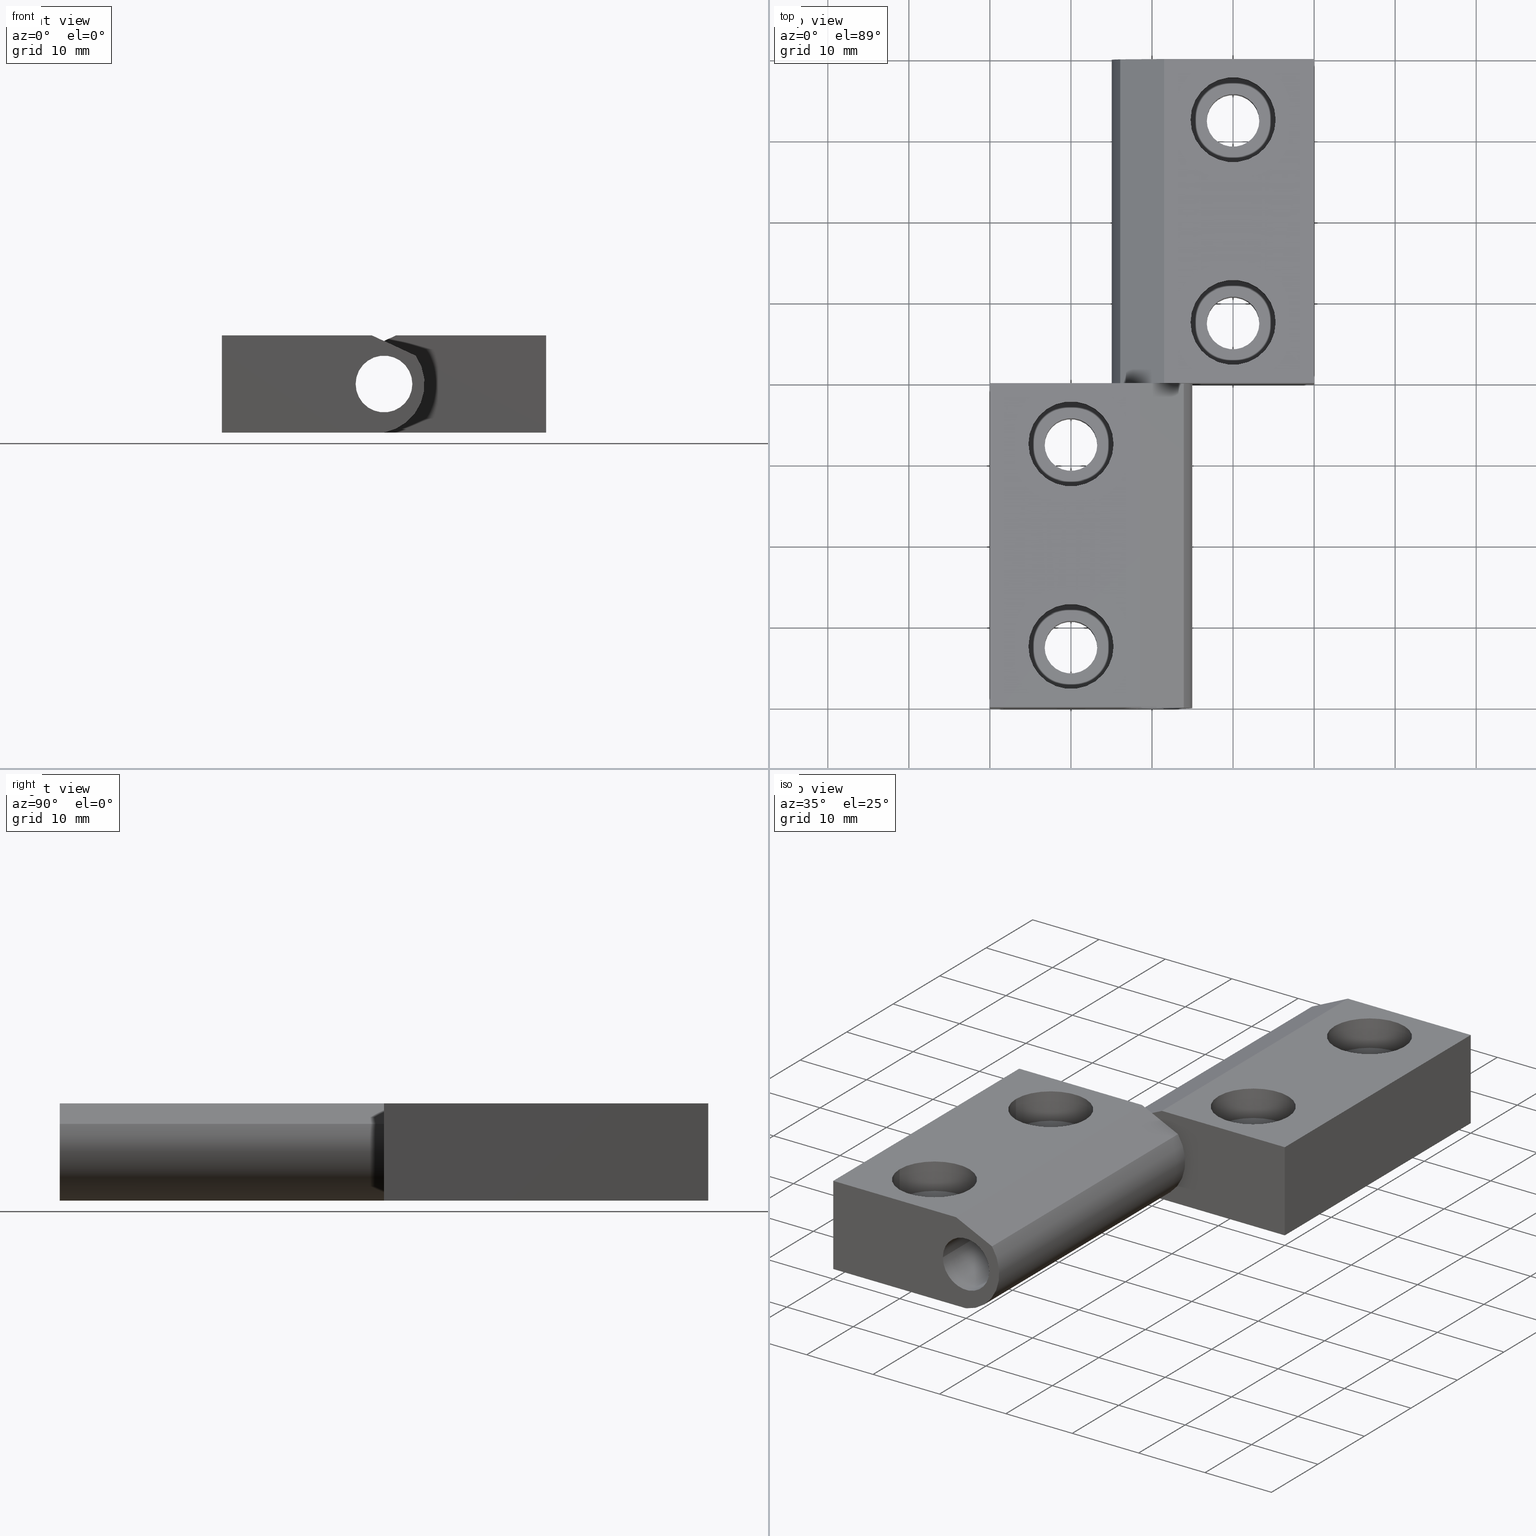
[diagram: canonical four-view strip — front | top / right | iso, engineering-drawing reading convention]
A machine part, canonical four-view strip (front | top / right | iso — engineering-drawing reading convention). The complete STEP part file that produces these views, byte-faithful:
ISO-10303-21;
HEADER;
/****************************************************************
 * Generated by software with PDE/Lib inside                    *
 * PDElib Version v4.4, created Mon 02/23/2004                  *
 * International Technegroup Inc. (www.iti-oh.com)              *
 ****************************************************************/
FILE_DESCRIPTION(('STEP AP203'),'2;1');
FILE_NAME('15.160.00.stp','2011-03-21T15:46:27',(''),(''),'2009.3.110','THINKDESIGN','');
FILE_SCHEMA(('CONFIG_CONTROL_DESIGN'));
ENDSEC;
DATA;
#2=CARTESIAN_POINT('',(19.999959999920065,80.0,-5.999987999976378));
#3=DIRECTION('',(0.0,0.0,1.0));
#4=DIRECTION('',(-1.0,0.0,0.0));
#5=AXIS2_PLACEMENT_3D('',#2,#3,#4);
#6=PLANE('',#5);
#7=CARTESIAN_POINT('',(19.999959999920065,80.0,-5.999987999976378));
#8=VERTEX_POINT('',#7);
#9=CARTESIAN_POINT('',(19.999959999920065,40.0,-5.999987999976381));
#10=VERTEX_POINT('',#9);
#11=CARTESIAN_POINT('',(19.999959999920065,80.0,-5.999987999976378));
#12=DIRECTION('',(0.0,-1.0,0.0));
#13=VECTOR('',#12,40.0);
#14=LINE('',#11,#13);
#15=EDGE_CURVE('',#8,#10,#14,.T.);
#16=ORIENTED_EDGE('',*,*,#15,.T.);
#17=CARTESIAN_POINT('',(0.000002618212875,40.0,-5.999987999976381));
#18=VERTEX_POINT('',#17);
#19=CARTESIAN_POINT('',(19.999959999920065,40.0,-5.999987999976381));
#20=DIRECTION('',(-1.0,0.0,0.0));
#21=VECTOR('',#20,19.999957381707191);
#22=LINE('',#19,#21);
#23=EDGE_CURVE('',#10,#18,#22,.T.);
#24=ORIENTED_EDGE('',*,*,#23,.T.);
#25=CARTESIAN_POINT('',(0.000002618212875,80.0,-5.999987999976378));
#26=VERTEX_POINT('',#25);
#27=CARTESIAN_POINT('',(0.000002618212875,80.0,-5.999987999976378));
#28=DIRECTION('',(0.0,-1.0,0.0));
#29=VECTOR('',#28,40.0);
#30=LINE('',#27,#29);
#31=EDGE_CURVE('',#26,#18,#30,.T.);
#32=ORIENTED_EDGE('',*,*,#31,.F.);
#33=CARTESIAN_POINT('',(19.999959999920065,80.0,-5.999987999976378));
#34=DIRECTION('',(-1.0,0.0,0.0));
#35=VECTOR('',#34,19.999957381707191);
#36=LINE('',#33,#35);
#37=EDGE_CURVE('',#8,#26,#36,.T.);
#38=ORIENTED_EDGE('',*,*,#37,.F.);
#39=EDGE_LOOP('',(#16,#24,#32,#38));
#40=FACE_OUTER_BOUND('',#39,.T.);
#41=CARTESIAN_POINT('',(13.249979999960033,72.500015000030089,-5.999987999976379));
#42=VERTEX_POINT('',#41);
#43=CARTESIAN_POINT('',(6.749979999960033,72.500015000030089,-5.999987999976379));
#44=VERTEX_POINT('',#43);
#45=CARTESIAN_POINT('',(9.999979999960033,72.500015000030089,-5.999987999976379));
#46=DIRECTION('',(0.0,0.0,1.0));
#47=DIRECTION('',(1.0,0.0,0.0));
#48=AXIS2_PLACEMENT_3D('',#45,#46,#47);
#49=CIRCLE('',#48,3.250000000000000);
#50=EDGE_CURVE('',#42,#44,#49,.T.);
#51=ORIENTED_EDGE('',*,*,#50,.T.);
#52=CARTESIAN_POINT('',(9.999979999960033,72.500015000030089,-5.999987999976379));
#53=DIRECTION('',(0.0,0.0,1.0));
#54=DIRECTION('',(1.0,0.0,0.0));
#55=AXIS2_PLACEMENT_3D('',#52,#53,#54);
#56=CIRCLE('',#55,3.250000000000000);
#57=EDGE_CURVE('',#44,#42,#56,.T.);
#58=ORIENTED_EDGE('',*,*,#57,.T.);
#59=EDGE_LOOP('',(#51,#58));
#60=FACE_BOUND('',#59,.T.);
#61=CARTESIAN_POINT('',(13.249979999960033,47.500065000130235,-5.999987999976381));
#62=VERTEX_POINT('',#61);
#63=CARTESIAN_POINT('',(6.749979999960033,47.500065000130235,-5.999987999976381));
#64=VERTEX_POINT('',#63);
#65=CARTESIAN_POINT('',(9.999979999960033,47.500065000130235,-5.999987999976381));
#66=DIRECTION('',(0.0,0.0,1.0));
#67=DIRECTION('',(1.0,0.0,0.0));
#68=AXIS2_PLACEMENT_3D('',#65,#66,#67);
#69=CIRCLE('',#68,3.250000000000000);
#70=EDGE_CURVE('',#62,#64,#69,.T.);
#71=ORIENTED_EDGE('',*,*,#70,.T.);
#72=CARTESIAN_POINT('',(9.999979999960033,47.500065000130235,-5.999987999976381));
#73=DIRECTION('',(0.0,0.0,1.0));
#74=DIRECTION('',(1.0,0.0,0.0));
#75=AXIS2_PLACEMENT_3D('',#72,#73,#74);
#76=CIRCLE('',#75,3.250000000000000);
#77=EDGE_CURVE('',#64,#62,#76,.T.);
#78=ORIENTED_EDGE('',*,*,#77,.T.);
#79=EDGE_LOOP('',(#71,#78));
#80=FACE_BOUND('',#79,.T.);
#81=ADVANCED_FACE('',(#40,#60,#80),#6,.F.);
#82=CARTESIAN_POINT('',(1.099998098277865,80.0,0.000000427091441));
#83=DIRECTION('',(0.0,1.0,6.123234E-017));
#84=DIRECTION('',(-0.180327488483690,6.022854E-017,-0.983606627111248));
#85=AXIS2_PLACEMENT_3D('',#82,#83,#84);
#86=CYLINDRICAL_SURFACE('',#85,6.099987801718248);
#87=ORIENTED_EDGE('',*,*,#31,.T.);
#88=CARTESIAN_POINT('',(-3.912713944059760,40.0,3.475999443448930));
#89=VERTEX_POINT('',#88);
#90=CARTESIAN_POINT('',(1.099998098277865,40.0,0.000000427091438));
#91=DIRECTION('',(0.0,1.0,6.123234E-017));
#92=DIRECTION('',(-0.180327488483690,6.022854E-017,-0.983606627111248));
#93=AXIS2_PLACEMENT_3D('',#90,#91,#92);
#94=CIRCLE('',#93,6.099987801718248);
#95=EDGE_CURVE('',#18,#89,#94,.T.);
#96=ORIENTED_EDGE('',*,*,#95,.T.);
#97=CARTESIAN_POINT('',(-3.912713944059760,80.0,3.475999443448932));
#98=VERTEX_POINT('',#97);
#99=CARTESIAN_POINT('',(-3.912713944059760,80.0,3.475999443448932));
#100=DIRECTION('',(0.0,-1.0,0.0));
#101=VECTOR('',#100,40.0);
#102=LINE('',#99,#101);
#103=EDGE_CURVE('',#98,#89,#102,.T.);
#104=ORIENTED_EDGE('',*,*,#103,.F.);
#105=CARTESIAN_POINT('',(1.099998098277865,80.0,0.000000427091441));
#106=DIRECTION('',(0.0,1.0,6.123234E-017));
#107=DIRECTION('',(-0.180327488483690,6.022854E-017,-0.983606627111248));
#108=AXIS2_PLACEMENT_3D('',#105,#106,#107);
#109=CIRCLE('',#108,6.099987801718248);
#110=EDGE_CURVE('',#26,#98,#109,.T.);
#111=ORIENTED_EDGE('',*,*,#110,.F.);
#112=EDGE_LOOP('',(#87,#96,#104,#111));
#113=FACE_OUTER_BOUND('',#112,.T.);
#114=ADVANCED_FACE('',(#113),#86,.T.);
#115=CARTESIAN_POINT('',(-3.912713944059760,80.0,3.475999443448932));
#116=DIRECTION('',(0.422618260631533,5.549535E-017,-0.906307787553863));
#117=DIRECTION('',(0.906307787553863,-2.587791E-017,0.422618260631533));
#118=AXIS2_PLACEMENT_3D('',#115,#116,#117);
#119=PLANE('',#118);
#120=ORIENTED_EDGE('',*,*,#103,.T.);
#121=CARTESIAN_POINT('',(1.499996999993982,40.0,5.999987999975931));
#122=VERTEX_POINT('',#121);
#123=CARTESIAN_POINT('',(-3.912713944059760,40.0,3.475999443448930));
#124=DIRECTION('',(0.906307787553863,0.0,0.422618260631533));
#125=VECTOR('',#124,5.972265733987262);
#126=LINE('',#123,#125);
#127=EDGE_CURVE('',#89,#122,#126,.T.);
#128=ORIENTED_EDGE('',*,*,#127,.T.);
#129=CARTESIAN_POINT('',(1.499996999993982,80.0,5.999987999975934));
#130=VERTEX_POINT('',#129);
#131=CARTESIAN_POINT('',(1.499996999993982,80.0,5.999987999975934));
#132=DIRECTION('',(0.0,-1.0,0.0));
#133=VECTOR('',#132,40.0);
#134=LINE('',#131,#133);
#135=EDGE_CURVE('',#130,#122,#134,.T.);
#136=ORIENTED_EDGE('',*,*,#135,.F.);
#137=CARTESIAN_POINT('',(-3.912713944059760,80.0,3.475999443448932));
#138=DIRECTION('',(0.906307787553863,0.0,0.422618260631533));
#139=VECTOR('',#138,5.972265733987262);
#140=LINE('',#137,#139);
#141=EDGE_CURVE('',#98,#130,#140,.T.);
#142=ORIENTED_EDGE('',*,*,#141,.F.);
#143=EDGE_LOOP('',(#120,#128,#136,#142));
#144=FACE_OUTER_BOUND('',#143,.T.);
#145=ADVANCED_FACE('',(#144),#119,.F.);
#146=CARTESIAN_POINT('',(1.499996999993982,80.0,5.999987999975934));
#147=DIRECTION('',(0.0,0.0,-1.0));
#148=DIRECTION('',(1.0,0.0,0.0));
#149=AXIS2_PLACEMENT_3D('',#146,#147,#148);
#150=PLANE('',#149);
#151=ORIENTED_EDGE('',*,*,#135,.T.);
#152=CARTESIAN_POINT('',(19.999959999920065,40.0,5.999987999975931));
#153=VERTEX_POINT('',#152);
#154=CARTESIAN_POINT('',(1.499996999993982,40.0,5.999987999975931));
#155=DIRECTION('',(1.0,0.0,0.0));
#156=VECTOR('',#155,18.499962999926083);
#157=LINE('',#154,#156);
#158=EDGE_CURVE('',#122,#153,#157,.T.);
#159=ORIENTED_EDGE('',*,*,#158,.T.);
#160=CARTESIAN_POINT('',(19.999959999920065,80.0,5.999987999975934));
#161=VERTEX_POINT('',#160);
#162=CARTESIAN_POINT('',(19.999959999920065,80.0,5.999987999975934));
#163=DIRECTION('',(0.0,-1.0,0.0));
#164=VECTOR('',#163,40.0);
#165=LINE('',#162,#164);
#166=EDGE_CURVE('',#161,#153,#165,.T.);
#167=ORIENTED_EDGE('',*,*,#166,.F.);
#168=CARTESIAN_POINT('',(1.499996999993982,80.0,5.999987999975934));
#169=DIRECTION('',(1.0,0.0,0.0));
#170=VECTOR('',#169,18.499962999926083);
#171=LINE('',#168,#170);
#172=EDGE_CURVE('',#130,#161,#171,.T.);
#173=ORIENTED_EDGE('',*,*,#172,.F.);
#174=EDGE_LOOP('',(#151,#159,#167,#173));
#175=FACE_OUTER_BOUND('',#174,.T.);
#176=CARTESIAN_POINT('',(4.749979999960033,72.500015000030089,5.999987999975933));
#177=VERTEX_POINT('',#176);
#178=CARTESIAN_POINT('',(15.249979999960033,72.500015000030089,5.999987999975933));
#179=VERTEX_POINT('',#178);
#180=CARTESIAN_POINT('',(9.999979999960033,72.500015000030089,5.999987999975933));
#181=DIRECTION('',(0.0,0.0,1.0));
#182=DIRECTION('',(1.0,0.0,0.0));
#183=AXIS2_PLACEMENT_3D('',#180,#181,#182);
#184=CIRCLE('',#183,5.250000000000000);
#185=EDGE_CURVE('',#177,#179,#184,.T.);
#186=ORIENTED_EDGE('',*,*,#185,.F.);
#187=CARTESIAN_POINT('',(9.999979999960033,72.500015000030089,5.999987999975933));
#188=DIRECTION('',(0.0,0.0,1.0));
#189=DIRECTION('',(1.0,0.0,0.0));
#190=AXIS2_PLACEMENT_3D('',#187,#188,#189);
#191=CIRCLE('',#190,5.250000000000000);
#192=EDGE_CURVE('',#179,#177,#191,.T.);
#193=ORIENTED_EDGE('',*,*,#192,.F.);
#194=EDGE_LOOP('',(#186,#193));
#195=FACE_BOUND('',#194,.T.);
#196=CARTESIAN_POINT('',(4.749979999960033,47.500065000130235,5.999987999975931));
#197=VERTEX_POINT('',#196);
#198=CARTESIAN_POINT('',(15.249979999960033,47.500065000130235,5.999987999975931));
#199=VERTEX_POINT('',#198);
#200=CARTESIAN_POINT('',(9.999979999960033,47.500065000130235,5.999987999975931));
#201=DIRECTION('',(0.0,0.0,1.0));
#202=DIRECTION('',(1.0,0.0,0.0));
#203=AXIS2_PLACEMENT_3D('',#200,#201,#202);
#204=CIRCLE('',#203,5.250000000000000);
#205=EDGE_CURVE('',#197,#199,#204,.T.);
#206=ORIENTED_EDGE('',*,*,#205,.F.);
#207=CARTESIAN_POINT('',(9.999979999960033,47.500065000130235,5.999987999975931));
#208=DIRECTION('',(0.0,0.0,1.0));
#209=DIRECTION('',(1.0,0.0,0.0));
#210=AXIS2_PLACEMENT_3D('',#207,#208,#209);
#211=CIRCLE('',#210,5.250000000000000);
#212=EDGE_CURVE('',#199,#197,#211,.T.);
#213=ORIENTED_EDGE('',*,*,#212,.F.);
#214=EDGE_LOOP('',(#206,#213));
#215=FACE_BOUND('',#214,.T.);
#216=ADVANCED_FACE('',(#175,#195,#215),#150,.F.);
#217=CARTESIAN_POINT('',(19.999959999920065,80.0,5.999987999975934));
#218=DIRECTION('',(-1.0,0.0,0.0));
#219=DIRECTION('',(0.0,0.0,-1.0));
#220=AXIS2_PLACEMENT_3D('',#217,#218,#219);
#221=PLANE('',#220);
#222=ORIENTED_EDGE('',*,*,#166,.T.);
#223=CARTESIAN_POINT('',(19.999959999920065,40.0,5.999987999975931));
#224=DIRECTION('',(0.0,0.0,-1.0));
#225=VECTOR('',#224,11.999975999952312);
#226=LINE('',#223,#225);
#227=EDGE_CURVE('',#153,#10,#226,.T.);
#228=ORIENTED_EDGE('',*,*,#227,.T.);
#229=ORIENTED_EDGE('',*,*,#15,.F.);
#230=CARTESIAN_POINT('',(19.999959999920065,80.0,5.999987999975934));
#231=DIRECTION('',(0.0,0.0,-1.0));
#232=VECTOR('',#231,11.999975999952312);
#233=LINE('',#230,#232);
#234=EDGE_CURVE('',#161,#8,#233,.T.);
#235=ORIENTED_EDGE('',*,*,#234,.F.);
#236=EDGE_LOOP('',(#222,#228,#229,#235));
#237=FACE_OUTER_BOUND('',#236,.T.);
#238=ADVANCED_FACE('',(#237),#221,.F.);
#239=CARTESIAN_POINT('',(-7.499989406390796,80.0,7.199990332646399));
#240=DIRECTION('',(0.0,1.0,0.0));
#241=DIRECTION('',(1.0,0.0,0.0));
#242=AXIS2_PLACEMENT_3D('',#239,#240,#241);
#243=PLANE('',#242);
#244=ORIENTED_EDGE('',*,*,#37,.T.);
#245=ORIENTED_EDGE('',*,*,#110,.T.);
#246=ORIENTED_EDGE('',*,*,#141,.T.);
#247=ORIENTED_EDGE('',*,*,#172,.T.);
#248=ORIENTED_EDGE('',*,*,#234,.T.);
#249=EDGE_LOOP('',(#244,#245,#246,#247,#248));
#250=FACE_OUTER_BOUND('',#249,.T.);
#251=CARTESIAN_POINT('',(-3.499992999985807,80.0,4.898587E-015));
#252=VERTEX_POINT('',#251);
#253=CARTESIAN_POINT('',(3.499992999985807,80.0,4.898587E-015));
#254=VERTEX_POINT('',#253);
#255=CARTESIAN_POINT('',(0.0,80.0,4.898587E-015));
#256=DIRECTION('',(0.0,1.0,6.123234E-017));
#257=DIRECTION('',(1.0,0.0,0.0));
#258=AXIS2_PLACEMENT_3D('',#255,#256,#257);
#259=CIRCLE('',#258,3.499992999985807);
#260=EDGE_CURVE('',#252,#254,#259,.T.);
#261=ORIENTED_EDGE('',*,*,#260,.F.);
#262=CARTESIAN_POINT('',(0.0,80.0,4.898587E-015));
#263=DIRECTION('',(0.0,1.0,6.123234E-017));
#264=DIRECTION('',(1.0,0.0,0.0));
#265=AXIS2_PLACEMENT_3D('',#262,#263,#264);
#266=CIRCLE('',#265,3.499992999985807);
#267=EDGE_CURVE('',#254,#252,#266,.T.);
#268=ORIENTED_EDGE('',*,*,#267,.F.);
#269=EDGE_LOOP('',(#261,#268));
#270=FACE_BOUND('',#269,.T.);
#271=ADVANCED_FACE('',(#250,#270),#243,.T.);
#272=CARTESIAN_POINT('',(-7.499989406390796,40.0,7.199990332646396));
#273=DIRECTION('',(0.0,1.0,0.0));
#274=DIRECTION('',(1.0,0.0,0.0));
#275=AXIS2_PLACEMENT_3D('',#272,#273,#274);
#276=PLANE('',#275);
#277=ORIENTED_EDGE('',*,*,#227,.F.);
#278=ORIENTED_EDGE('',*,*,#158,.F.);
#279=ORIENTED_EDGE('',*,*,#127,.F.);
#280=ORIENTED_EDGE('',*,*,#95,.F.);
#281=ORIENTED_EDGE('',*,*,#23,.F.);
#282=EDGE_LOOP('',(#277,#278,#279,#280,#281));
#283=FACE_OUTER_BOUND('',#282,.T.);
#284=CARTESIAN_POINT('',(3.499992999985807,40.0,2.449294E-015));
#285=VERTEX_POINT('',#284);
#286=CARTESIAN_POINT('',(-3.499992999985807,40.0,2.449294E-015));
#287=VERTEX_POINT('',#286);
#288=CARTESIAN_POINT('',(0.0,40.0,2.449294E-015));
#289=DIRECTION('',(0.0,1.0,6.123234E-017));
#290=DIRECTION('',(1.0,0.0,0.0));
#291=AXIS2_PLACEMENT_3D('',#288,#289,#290);
#292=CIRCLE('',#291,3.499992999985807);
#293=EDGE_CURVE('',#285,#287,#292,.T.);
#294=ORIENTED_EDGE('',*,*,#293,.T.);
#295=CARTESIAN_POINT('',(0.0,40.0,2.449294E-015));
#296=DIRECTION('',(0.0,1.0,6.123234E-017));
#297=DIRECTION('',(1.0,0.0,0.0));
#298=AXIS2_PLACEMENT_3D('',#295,#296,#297);
#299=CIRCLE('',#298,3.499992999985807);
#300=EDGE_CURVE('',#287,#285,#299,.T.);
#301=ORIENTED_EDGE('',*,*,#300,.T.);
#302=EDGE_LOOP('',(#294,#301));
#303=FACE_BOUND('',#302,.T.);
#304=ADVANCED_FACE('',(#283,#303),#276,.F.);
#305=CARTESIAN_POINT('',(9.999979999960033,72.500015000030089,-34.000012000024064));
#306=DIRECTION('',(0.0,0.0,1.0));
#307=DIRECTION('',(1.0,0.0,0.0));
#308=AXIS2_PLACEMENT_3D('',#305,#306,#307);
#309=CYLINDRICAL_SURFACE('',#308,3.250000000000000);
#310=CARTESIAN_POINT('',(13.249979999960033,72.500015000030089,1.999995999991829));
#311=VERTEX_POINT('',#310);
#312=CARTESIAN_POINT('',(13.249979999960033,72.500015000030089,-5.999987999976376));
#313=DIRECTION('',(0.0,0.0,1.0));
#314=VECTOR('',#313,7.999983999968208);
#315=LINE('',#312,#314);
#316=EDGE_CURVE('',#42,#311,#315,.T.);
#317=ORIENTED_EDGE('',*,*,#316,.F.);
#318=ORIENTED_EDGE('',*,*,#57,.F.);
#319=ORIENTED_EDGE('',*,*,#50,.F.);
#320=ORIENTED_EDGE('',*,*,#316,.T.);
#321=CARTESIAN_POINT('',(6.749979999960033,72.500015000030089,1.999995999991829));
#322=VERTEX_POINT('',#321);
#323=CARTESIAN_POINT('',(9.999979999960033,72.500015000030089,1.999995999991829));
#324=DIRECTION('',(0.0,0.0,1.0));
#325=DIRECTION('',(1.0,0.0,0.0));
#326=AXIS2_PLACEMENT_3D('',#323,#324,#325);
#327=CIRCLE('',#326,3.250000000000000);
#328=EDGE_CURVE('',#311,#322,#327,.T.);
#329=ORIENTED_EDGE('',*,*,#328,.T.);
#330=CARTESIAN_POINT('',(9.999979999960033,72.500015000030089,1.999995999991829));
#331=DIRECTION('',(0.0,0.0,1.0));
#332=DIRECTION('',(1.0,0.0,0.0));
#333=AXIS2_PLACEMENT_3D('',#330,#331,#332);
#334=CIRCLE('',#333,3.250000000000000);
#335=EDGE_CURVE('',#322,#311,#334,.T.);
#336=ORIENTED_EDGE('',*,*,#335,.T.);
#337=EDGE_LOOP('',(#317,#318,#319,#320,#329,#336));
#338=FACE_OUTER_BOUND('',#337,.T.);
#339=ADVANCED_FACE('',(#338),#309,.F.);
#340=CARTESIAN_POINT('',(-0.500020000039967,62.000015000030089,1.999995999991828));
#341=DIRECTION('',(0.0,0.0,-1.0));
#342=DIRECTION('',(0.0,1.0,0.0));
#343=AXIS2_PLACEMENT_3D('',#340,#341,#342);
#344=PLANE('',#343);
#345=CARTESIAN_POINT('',(15.249979999960033,72.500015000030089,1.999995999991829));
#346=VERTEX_POINT('',#345);
#347=CARTESIAN_POINT('',(4.749979999960033,72.500015000030089,1.999995999991829));
#348=VERTEX_POINT('',#347);
#349=CARTESIAN_POINT('',(9.999979999960033,72.500015000030089,1.999995999991829));
#350=DIRECTION('',(0.0,0.0,1.0));
#351=DIRECTION('',(1.0,0.0,0.0));
#352=AXIS2_PLACEMENT_3D('',#349,#350,#351);
#353=CIRCLE('',#352,5.250000000000000);
#354=EDGE_CURVE('',#346,#348,#353,.T.);
#355=ORIENTED_EDGE('',*,*,#354,.T.);
#356=CARTESIAN_POINT('',(9.999979999960033,72.500015000030089,1.999995999991829));
#357=DIRECTION('',(0.0,0.0,1.0));
#358=DIRECTION('',(1.0,0.0,0.0));
#359=AXIS2_PLACEMENT_3D('',#356,#357,#358);
#360=CIRCLE('',#359,5.250000000000000);
#361=EDGE_CURVE('',#348,#346,#360,.T.);
#362=ORIENTED_EDGE('',*,*,#361,.T.);
#363=EDGE_LOOP('',(#355,#362));
#364=FACE_OUTER_BOUND('',#363,.T.);
#365=ORIENTED_EDGE('',*,*,#335,.F.);
#366=ORIENTED_EDGE('',*,*,#328,.F.);
#367=EDGE_LOOP('',(#365,#366));
#368=FACE_BOUND('',#367,.T.);
#369=ADVANCED_FACE('',(#364,#368),#344,.F.);
#370=CARTESIAN_POINT('',(9.999979999960033,72.500015000030089,1.999995999991829));
#371=DIRECTION('',(0.0,0.0,1.0));
#372=DIRECTION('',(1.0,0.0,0.0));
#373=AXIS2_PLACEMENT_3D('',#370,#371,#372);
#374=CYLINDRICAL_SURFACE('',#373,5.250000000000000);
#375=CARTESIAN_POINT('',(15.249979999960033,72.500015000030089,1.999995999991829));
#376=DIRECTION('',(0.0,0.0,1.0));
#377=VECTOR('',#376,3.999991999984104);
#378=LINE('',#375,#377);
#379=EDGE_CURVE('',#346,#179,#378,.T.);
#380=ORIENTED_EDGE('',*,*,#379,.T.);
#381=ORIENTED_EDGE('',*,*,#192,.T.);
#382=ORIENTED_EDGE('',*,*,#185,.T.);
#383=ORIENTED_EDGE('',*,*,#379,.F.);
#384=ORIENTED_EDGE('',*,*,#361,.F.);
#385=ORIENTED_EDGE('',*,*,#354,.F.);
#386=EDGE_LOOP('',(#380,#381,#382,#383,#384,#385));
#387=FACE_OUTER_BOUND('',#386,.T.);
#388=ADVANCED_FACE('',(#387),#374,.F.);
#389=CARTESIAN_POINT('',(9.999979999960033,47.500065000130235,-34.000012000024071));
#390=DIRECTION('',(0.0,0.0,1.0));
#391=DIRECTION('',(1.0,0.0,0.0));
#392=AXIS2_PLACEMENT_3D('',#389,#390,#391);
#393=CYLINDRICAL_SURFACE('',#392,3.250000000000000);
#394=CARTESIAN_POINT('',(13.249979999960033,47.500065000130235,1.999995999991828));
#395=VERTEX_POINT('',#394);
#396=CARTESIAN_POINT('',(13.249979999960033,47.500065000130235,-5.999987999976383));
#397=DIRECTION('',(0.0,0.0,1.0));
#398=VECTOR('',#397,7.999983999968208);
#399=LINE('',#396,#398);
#400=EDGE_CURVE('',#62,#395,#399,.T.);
#401=ORIENTED_EDGE('',*,*,#400,.F.);
#402=ORIENTED_EDGE('',*,*,#77,.F.);
#403=ORIENTED_EDGE('',*,*,#70,.F.);
#404=ORIENTED_EDGE('',*,*,#400,.T.);
#405=CARTESIAN_POINT('',(6.749979999960033,47.500065000130235,1.999995999991828));
#406=VERTEX_POINT('',#405);
#407=CARTESIAN_POINT('',(9.999979999960033,47.500065000130235,1.999995999991828));
#408=DIRECTION('',(0.0,0.0,1.0));
#409=DIRECTION('',(1.0,0.0,0.0));
#410=AXIS2_PLACEMENT_3D('',#407,#408,#409);
#411=CIRCLE('',#410,3.250000000000000);
#412=EDGE_CURVE('',#395,#406,#411,.T.);
#413=ORIENTED_EDGE('',*,*,#412,.T.);
#414=CARTESIAN_POINT('',(9.999979999960033,47.500065000130235,1.999995999991828));
#415=DIRECTION('',(0.0,0.0,1.0));
#416=DIRECTION('',(1.0,0.0,0.0));
#417=AXIS2_PLACEMENT_3D('',#414,#415,#416);
#418=CIRCLE('',#417,3.250000000000000);
#419=EDGE_CURVE('',#406,#395,#418,.T.);
#420=ORIENTED_EDGE('',*,*,#419,.T.);
#421=EDGE_LOOP('',(#401,#402,#403,#404,#413,#420));
#422=FACE_OUTER_BOUND('',#421,.T.);
#423=ADVANCED_FACE('',(#422),#393,.F.);
#424=CARTESIAN_POINT('',(-0.500020000039967,37.000065000130235,1.999995999991827));
#425=DIRECTION('',(0.0,0.0,-1.0));
#426=DIRECTION('',(0.0,1.0,0.0));
#427=AXIS2_PLACEMENT_3D('',#424,#425,#426);
#428=PLANE('',#427);
#429=CARTESIAN_POINT('',(15.249979999960033,47.500065000130235,1.999995999991828));
#430=VERTEX_POINT('',#429);
#431=CARTESIAN_POINT('',(4.749979999960033,47.500065000130235,1.999995999991828));
#432=VERTEX_POINT('',#431);
#433=CARTESIAN_POINT('',(9.999979999960033,47.500065000130235,1.999995999991828));
#434=DIRECTION('',(0.0,0.0,1.0));
#435=DIRECTION('',(1.0,0.0,0.0));
#436=AXIS2_PLACEMENT_3D('',#433,#434,#435);
#437=CIRCLE('',#436,5.250000000000000);
#438=EDGE_CURVE('',#430,#432,#437,.T.);
#439=ORIENTED_EDGE('',*,*,#438,.T.);
#440=CARTESIAN_POINT('',(9.999979999960033,47.500065000130235,1.999995999991828));
#441=DIRECTION('',(0.0,0.0,1.0));
#442=DIRECTION('',(1.0,0.0,0.0));
#443=AXIS2_PLACEMENT_3D('',#440,#441,#442);
#444=CIRCLE('',#443,5.250000000000000);
#445=EDGE_CURVE('',#432,#430,#444,.T.);
#446=ORIENTED_EDGE('',*,*,#445,.T.);
#447=EDGE_LOOP('',(#439,#446));
#448=FACE_OUTER_BOUND('',#447,.T.);
#449=ORIENTED_EDGE('',*,*,#419,.F.);
#450=ORIENTED_EDGE('',*,*,#412,.F.);
#451=EDGE_LOOP('',(#449,#450));
#452=FACE_BOUND('',#451,.T.);
#453=ADVANCED_FACE('',(#448,#452),#428,.F.);
#454=CARTESIAN_POINT('',(9.999979999960033,47.500065000130235,1.999995999991828));
#455=DIRECTION('',(0.0,0.0,1.0));
#456=DIRECTION('',(1.0,0.0,0.0));
#457=AXIS2_PLACEMENT_3D('',#454,#455,#456);
#458=CYLINDRICAL_SURFACE('',#457,5.250000000000000);
#459=CARTESIAN_POINT('',(15.249979999960033,47.500065000130235,1.999995999991828));
#460=DIRECTION('',(0.0,0.0,1.0));
#461=VECTOR('',#460,3.999991999984104);
#462=LINE('',#459,#461);
#463=EDGE_CURVE('',#430,#199,#462,.T.);
#464=ORIENTED_EDGE('',*,*,#463,.T.);
#465=ORIENTED_EDGE('',*,*,#212,.T.);
#466=ORIENTED_EDGE('',*,*,#205,.T.);
#467=ORIENTED_EDGE('',*,*,#463,.F.);
#468=ORIENTED_EDGE('',*,*,#445,.F.);
#469=ORIENTED_EDGE('',*,*,#438,.F.);
#470=EDGE_LOOP('',(#464,#465,#466,#467,#468,#469));
#471=FACE_OUTER_BOUND('',#470,.T.);
#472=ADVANCED_FACE('',(#471),#458,.F.);
#473=CARTESIAN_POINT('',(0.0,80.0,4.898587E-015));
#474=DIRECTION('',(0.0,1.0,6.123234E-017));
#475=DIRECTION('',(1.0,0.0,0.0));
#476=AXIS2_PLACEMENT_3D('',#473,#474,#475);
#477=CYLINDRICAL_SURFACE('',#476,3.499992999985807);
#478=CARTESIAN_POINT('',(3.499992999985807,80.0,4.898587E-015));
#479=DIRECTION('',(0.0,-1.0,0.0));
#480=VECTOR('',#479,40.0);
#481=LINE('',#478,#480);
#482=EDGE_CURVE('',#254,#285,#481,.T.);
#483=ORIENTED_EDGE('',*,*,#482,.T.);
#484=ORIENTED_EDGE('',*,*,#300,.F.);
#485=ORIENTED_EDGE('',*,*,#293,.F.);
#486=ORIENTED_EDGE('',*,*,#482,.F.);
#487=ORIENTED_EDGE('',*,*,#267,.T.);
#488=ORIENTED_EDGE('',*,*,#260,.T.);
#489=EDGE_LOOP('',(#483,#484,#485,#486,#487,#488));
#490=FACE_OUTER_BOUND('',#489,.T.);
#491=ADVANCED_FACE('',(#490),#477,.F.);
#492=CLOSED_SHELL('',(#81,#114,#145,#216,#238,#271,#304,#339,#369,#388,#423,#453,#472,#491));
#493=MANIFOLD_SOLID_BREP('',#492);
#494=CARTESIAN_POINT('',(-19.999959999920065,3.673933E-016,-5.999987999976383));
#495=DIRECTION('',(0.0,0.0,1.0));
#496=DIRECTION('',(1.0,0.0,0.0));
#497=AXIS2_PLACEMENT_3D('',#494,#495,#496);
#498=PLANE('',#497);
#499=CARTESIAN_POINT('',(-19.999959999920065,3.673933E-016,-5.999987999976383));
#500=VERTEX_POINT('',#499);
#501=CARTESIAN_POINT('',(-19.999959999920065,40.0,-5.999987999976381));
#502=VERTEX_POINT('',#501);
#503=CARTESIAN_POINT('',(-19.999959999920065,3.673933E-016,-5.999987999976383));
#504=DIRECTION('',(0.0,1.0,0.0));
#505=VECTOR('',#504,40.0);
#506=LINE('',#503,#505);
#507=EDGE_CURVE('',#500,#502,#506,.T.);
#508=ORIENTED_EDGE('',*,*,#507,.T.);
#509=CARTESIAN_POINT('',(-0.000002618212875,40.0,-5.999987999976381));
#510=VERTEX_POINT('',#509);
#511=CARTESIAN_POINT('',(-19.999959999920065,40.0,-5.999987999976381));
#512=DIRECTION('',(1.0,0.0,0.0));
#513=VECTOR('',#512,19.999957381707191);
#514=LINE('',#511,#513);
#515=EDGE_CURVE('',#502,#510,#514,.T.);
#516=ORIENTED_EDGE('',*,*,#515,.T.);
#517=CARTESIAN_POINT('',(-0.000002618212875,3.673933E-016,-5.999987999976383));
#518=VERTEX_POINT('',#517);
#519=CARTESIAN_POINT('',(-0.000002618212875,3.673933E-016,-5.999987999976383));
#520=DIRECTION('',(0.0,1.0,0.0));
#521=VECTOR('',#520,40.0);
#522=LINE('',#519,#521);
#523=EDGE_CURVE('',#518,#510,#522,.T.);
#524=ORIENTED_EDGE('',*,*,#523,.F.);
#525=CARTESIAN_POINT('',(-19.999959999920065,3.673933E-016,-5.999987999976383));
#526=DIRECTION('',(1.0,0.0,0.0));
#527=VECTOR('',#526,19.999957381707191);
#528=LINE('',#525,#527);
#529=EDGE_CURVE('',#500,#518,#528,.T.);
#530=ORIENTED_EDGE('',*,*,#529,.F.);
#531=EDGE_LOOP('',(#508,#516,#524,#530));
#532=FACE_OUTER_BOUND('',#531,.T.);
#533=CARTESIAN_POINT('',(-13.249979999960033,7.499984999969911,-5.999987999976383));
#534=VERTEX_POINT('',#533);
#535=CARTESIAN_POINT('',(-6.749979999960034,7.499984999969911,-5.999987999976383));
#536=VERTEX_POINT('',#535);
#537=CARTESIAN_POINT('',(-9.999979999960033,7.499984999969911,-5.999987999976383));
#538=DIRECTION('',(-7.498799E-033,-1.224647E-016,1.0));
#539=DIRECTION('',(-1.0,1.224647E-016,7.498799E-033));
#540=AXIS2_PLACEMENT_3D('',#537,#538,#539);
#541=CIRCLE('',#540,3.250000000000000);
#542=EDGE_CURVE('',#534,#536,#541,.T.);
#543=ORIENTED_EDGE('',*,*,#542,.T.);
#544=CARTESIAN_POINT('',(-9.999979999960033,7.499984999969911,-5.999987999976383));
#545=DIRECTION('',(-7.498799E-033,-1.224647E-016,1.0));
#546=DIRECTION('',(-1.0,1.224647E-016,7.498799E-033));
#547=AXIS2_PLACEMENT_3D('',#544,#545,#546);
#548=CIRCLE('',#547,3.250000000000000);
#549=EDGE_CURVE('',#536,#534,#548,.T.);
#550=ORIENTED_EDGE('',*,*,#549,.T.);
#551=EDGE_LOOP('',(#543,#550));
#552=FACE_BOUND('',#551,.T.);
#553=CARTESIAN_POINT('',(-13.249979999960033,32.499934999869765,-5.999987999976382));
#554=VERTEX_POINT('',#553);
#555=CARTESIAN_POINT('',(-6.749979999960033,32.499934999869765,-5.999987999976382));
#556=VERTEX_POINT('',#555);
#557=CARTESIAN_POINT('',(-9.999979999960033,32.499934999869765,-5.999987999976382));
#558=DIRECTION('',(-7.498799E-033,-1.224647E-016,1.0));
#559=DIRECTION('',(-1.0,1.224647E-016,7.498799E-033));
#560=AXIS2_PLACEMENT_3D('',#557,#558,#559);
#561=CIRCLE('',#560,3.250000000000000);
#562=EDGE_CURVE('',#554,#556,#561,.T.);
#563=ORIENTED_EDGE('',*,*,#562,.T.);
#564=CARTESIAN_POINT('',(-9.999979999960033,32.499934999869765,-5.999987999976382));
#565=DIRECTION('',(-7.498799E-033,-1.224647E-016,1.0));
#566=DIRECTION('',(-1.0,1.224647E-016,7.498799E-033));
#567=AXIS2_PLACEMENT_3D('',#564,#565,#566);
#568=CIRCLE('',#567,3.250000000000000);
#569=EDGE_CURVE('',#556,#554,#568,.T.);
#570=ORIENTED_EDGE('',*,*,#569,.T.);
#571=EDGE_LOOP('',(#563,#570));
#572=FACE_BOUND('',#571,.T.);
#573=ADVANCED_FACE('',(#532,#552,#572),#498,.F.);
#574=CARTESIAN_POINT('',(-1.099998098277865,-2.615181E-023,0.000000427091436));
#575=DIRECTION('',(-1.224647E-016,-1.0,-6.123234E-017));
#576=DIRECTION('',(0.180327488483690,3.814479E-017,-0.983606627111248));
#577=AXIS2_PLACEMENT_3D('',#574,#575,#576);
#578=CYLINDRICAL_SURFACE('',#577,6.099987801718248);
#579=ORIENTED_EDGE('',*,*,#523,.T.);
#580=CARTESIAN_POINT('',(3.912713944059760,40.0,3.475999443448930));
#581=VERTEX_POINT('',#580);
#582=CARTESIAN_POINT('',(-1.099998098277865,40.0,0.000000427091438));
#583=DIRECTION('',(-1.224647E-016,-1.0,-6.123234E-017));
#584=DIRECTION('',(0.180327488483690,3.814479E-017,-0.983606627111248));
#585=AXIS2_PLACEMENT_3D('',#582,#583,#584);
#586=CIRCLE('',#585,6.099987801718248);
#587=EDGE_CURVE('',#510,#581,#586,.T.);
#588=ORIENTED_EDGE('',*,*,#587,.T.);
#589=CARTESIAN_POINT('',(3.912713944059760,-2.128436E-016,3.475999443448927));
#590=VERTEX_POINT('',#589);
#591=CARTESIAN_POINT('',(3.912713944059760,-2.128436E-016,3.475999443448927));
#592=DIRECTION('',(0.0,1.0,0.0));
#593=VECTOR('',#592,40.0);
#594=LINE('',#591,#593);
#595=EDGE_CURVE('',#590,#581,#594,.T.);
#596=ORIENTED_EDGE('',*,*,#595,.F.);
#597=CARTESIAN_POINT('',(-1.099998098277865,-2.615181E-023,0.000000427091436));
#598=DIRECTION('',(-1.224647E-016,-1.0,-6.123234E-017));
#599=DIRECTION('',(0.180327488483690,3.814479E-017,-0.983606627111248));
#600=AXIS2_PLACEMENT_3D('',#597,#598,#599);
#601=CIRCLE('',#600,6.099987801718248);
#602=EDGE_CURVE('',#518,#590,#601,.T.);
#603=ORIENTED_EDGE('',*,*,#602,.F.);
#604=EDGE_LOOP('',(#579,#588,#596,#603));
#605=FACE_OUTER_BOUND('',#604,.T.);
#606=ADVANCED_FACE('',(#605),#578,.T.);
#607=CARTESIAN_POINT('',(3.912713944059760,-2.128436E-016,3.475999443448927));
#608=DIRECTION('',(-0.422618260631533,1.072512E-016,-0.906307787553863));
#609=DIRECTION('',(-0.906307787553863,8.511279E-017,0.422618260631533));
#610=AXIS2_PLACEMENT_3D('',#607,#608,#609);
#611=PLANE('',#610);
#612=ORIENTED_EDGE('',*,*,#595,.T.);
#613=CARTESIAN_POINT('',(-1.499996999993982,40.0,5.999987999975931));
#614=VERTEX_POINT('',#613);
#615=CARTESIAN_POINT('',(3.912713944059760,40.0,3.475999443448930));
#616=DIRECTION('',(-0.906307787553863,0.0,0.422618260631533));
#617=VECTOR('',#616,5.972265733987262);
#618=LINE('',#615,#617);
#619=EDGE_CURVE('',#581,#614,#618,.T.);
#620=ORIENTED_EDGE('',*,*,#619,.T.);
#621=CARTESIAN_POINT('',(-1.499996999993982,-3.673933E-016,5.999987999975929));
#622=VERTEX_POINT('',#621);
#623=CARTESIAN_POINT('',(-1.499996999993982,-3.673933E-016,5.999987999975929));
#624=DIRECTION('',(0.0,1.0,0.0));
#625=VECTOR('',#624,40.0);
#626=LINE('',#623,#625);
#627=EDGE_CURVE('',#622,#614,#626,.T.);
#628=ORIENTED_EDGE('',*,*,#627,.F.);
#629=CARTESIAN_POINT('',(3.912713944059760,-2.128436E-016,3.475999443448927));
#630=DIRECTION('',(-0.906307787553863,8.511279E-017,0.422618260631533));
#631=VECTOR('',#630,5.972265733987262);
#632=LINE('',#629,#631);
#633=EDGE_CURVE('',#590,#622,#632,.T.);
#634=ORIENTED_EDGE('',*,*,#633,.F.);
#635=EDGE_LOOP('',(#612,#620,#628,#634));
#636=FACE_OUTER_BOUND('',#635,.T.);
#637=ADVANCED_FACE('',(#636),#611,.F.);
#638=CARTESIAN_POINT('',(-1.499996999993982,-3.673933E-016,5.999987999975929));
#639=DIRECTION('',(0.0,0.0,-1.0));
#640=DIRECTION('',(-1.0,0.0,0.0));
#641=AXIS2_PLACEMENT_3D('',#638,#639,#640);
#642=PLANE('',#641);
#643=ORIENTED_EDGE('',*,*,#627,.T.);
#644=CARTESIAN_POINT('',(-19.999959999920065,40.0,5.999987999975931));
#645=VERTEX_POINT('',#644);
#646=CARTESIAN_POINT('',(-1.499996999993982,40.0,5.999987999975931));
#647=DIRECTION('',(-1.0,0.0,0.0));
#648=VECTOR('',#647,18.499962999926083);
#649=LINE('',#646,#648);
#650=EDGE_CURVE('',#614,#645,#649,.T.);
#651=ORIENTED_EDGE('',*,*,#650,.T.);
#652=CARTESIAN_POINT('',(-19.999959999920065,-3.673933E-016,5.999987999975929));
#653=VERTEX_POINT('',#652);
#654=CARTESIAN_POINT('',(-19.999959999920065,-3.673933E-016,5.999987999975929));
#655=DIRECTION('',(0.0,1.0,0.0));
#656=VECTOR('',#655,40.0);
#657=LINE('',#654,#656);
#658=EDGE_CURVE('',#653,#645,#657,.T.);
#659=ORIENTED_EDGE('',*,*,#658,.F.);
#660=CARTESIAN_POINT('',(-1.499996999993982,-3.673933E-016,5.999987999975929));
#661=DIRECTION('',(-1.0,0.0,0.0));
#662=VECTOR('',#661,18.499962999926083);
#663=LINE('',#660,#662);
#664=EDGE_CURVE('',#622,#653,#663,.T.);
#665=ORIENTED_EDGE('',*,*,#664,.F.);
#666=EDGE_LOOP('',(#643,#651,#659,#665));
#667=FACE_OUTER_BOUND('',#666,.T.);
#668=CARTESIAN_POINT('',(-4.749979999960034,7.499984999969911,5.999987999975930));
#669=VERTEX_POINT('',#668);
#670=CARTESIAN_POINT('',(-15.249979999960033,7.499984999969911,5.999987999975930));
#671=VERTEX_POINT('',#670);
#672=CARTESIAN_POINT('',(-9.999979999960033,7.499984999969911,5.999987999975930));
#673=DIRECTION('',(-7.498799E-033,-1.224647E-016,1.0));
#674=DIRECTION('',(-1.0,1.224647E-016,7.498799E-033));
#675=AXIS2_PLACEMENT_3D('',#672,#673,#674);
#676=CIRCLE('',#675,5.250000000000000);
#677=EDGE_CURVE('',#669,#671,#676,.T.);
#678=ORIENTED_EDGE('',*,*,#677,.F.);
#679=CARTESIAN_POINT('',(-9.999979999960033,7.499984999969911,5.999987999975930));
#680=DIRECTION('',(-7.498799E-033,-1.224647E-016,1.0));
#681=DIRECTION('',(-1.0,1.224647E-016,7.498799E-033));
#682=AXIS2_PLACEMENT_3D('',#679,#680,#681);
#683=CIRCLE('',#682,5.250000000000000);
#684=EDGE_CURVE('',#671,#669,#683,.T.);
#685=ORIENTED_EDGE('',*,*,#684,.F.);
#686=EDGE_LOOP('',(#678,#685));
#687=FACE_BOUND('',#686,.T.);
#688=CARTESIAN_POINT('',(-4.749979999960033,32.499934999869765,5.999987999975931));
#689=VERTEX_POINT('',#688);
#690=CARTESIAN_POINT('',(-15.249979999960033,32.499934999869765,5.999987999975931));
#691=VERTEX_POINT('',#690);
#692=CARTESIAN_POINT('',(-9.999979999960033,32.499934999869765,5.999987999975931));
#693=DIRECTION('',(-7.498799E-033,-1.224647E-016,1.0));
#694=DIRECTION('',(-1.0,1.224647E-016,7.498799E-033));
#695=AXIS2_PLACEMENT_3D('',#692,#693,#694);
#696=CIRCLE('',#695,5.250000000000000);
#697=EDGE_CURVE('',#689,#691,#696,.T.);
#698=ORIENTED_EDGE('',*,*,#697,.F.);
#699=CARTESIAN_POINT('',(-9.999979999960033,32.499934999869765,5.999987999975931));
#700=DIRECTION('',(-7.498799E-033,-1.224647E-016,1.0));
#701=DIRECTION('',(-1.0,1.224647E-016,7.498799E-033));
#702=AXIS2_PLACEMENT_3D('',#699,#700,#701);
#703=CIRCLE('',#702,5.250000000000000);
#704=EDGE_CURVE('',#691,#689,#703,.T.);
#705=ORIENTED_EDGE('',*,*,#704,.F.);
#706=EDGE_LOOP('',(#698,#705));
#707=FACE_BOUND('',#706,.T.);
#708=ADVANCED_FACE('',(#667,#687,#707),#642,.F.);
#709=CARTESIAN_POINT('',(-19.999959999920065,-3.673933E-016,5.999987999975929));
#710=DIRECTION('',(1.0,0.0,0.0));
#711=DIRECTION('',(0.0,0.0,-1.0));
#712=AXIS2_PLACEMENT_3D('',#709,#710,#711);
#713=PLANE('',#712);
#714=ORIENTED_EDGE('',*,*,#658,.T.);
#715=CARTESIAN_POINT('',(-19.999959999920065,40.0,5.999987999975931));
#716=DIRECTION('',(0.0,0.0,-1.0));
#717=VECTOR('',#716,11.999975999952312);
#718=LINE('',#715,#717);
#719=EDGE_CURVE('',#645,#502,#718,.T.);
#720=ORIENTED_EDGE('',*,*,#719,.T.);
#721=ORIENTED_EDGE('',*,*,#507,.F.);
#722=CARTESIAN_POINT('',(-19.999959999920065,-3.673933E-016,5.999987999975929));
#723=DIRECTION('',(0.0,0.0,-1.0));
#724=VECTOR('',#723,11.999975999952312);
#725=LINE('',#722,#724);
#726=EDGE_CURVE('',#653,#500,#725,.T.);
#727=ORIENTED_EDGE('',*,*,#726,.F.);
#728=EDGE_LOOP('',(#714,#720,#721,#727));
#729=FACE_OUTER_BOUND('',#728,.T.);
#730=ADVANCED_FACE('',(#729),#713,.F.);
#731=CARTESIAN_POINT('',(7.499989406390796,-4.408723E-016,7.199990332646394));
#732=DIRECTION('',(0.0,-1.0,0.0));
#733=DIRECTION('',(-1.0,0.0,0.0));
#734=AXIS2_PLACEMENT_3D('',#731,#732,#733);
#735=PLANE('',#734);
#736=ORIENTED_EDGE('',*,*,#529,.T.);
#737=ORIENTED_EDGE('',*,*,#602,.T.);
#738=ORIENTED_EDGE('',*,*,#633,.T.);
#739=ORIENTED_EDGE('',*,*,#664,.T.);
#740=ORIENTED_EDGE('',*,*,#726,.T.);
#741=EDGE_LOOP('',(#736,#737,#738,#739,#740));
#742=FACE_OUTER_BOUND('',#741,.T.);
#743=CARTESIAN_POINT('',(3.499992999985807,-4.286255E-016,-2.624574E-032));
#744=VERTEX_POINT('',#743);
#745=CARTESIAN_POINT('',(-3.499992999985807,0.0,0.0));
#746=VERTEX_POINT('',#745);
#747=CARTESIAN_POINT('',(0.0,0.0,0.0));
#748=DIRECTION('',(-1.224647E-016,-1.0,-6.123234E-017));
#749=DIRECTION('',(-1.0,1.224647E-016,7.498799E-033));
#750=AXIS2_PLACEMENT_3D('',#747,#748,#749);
#751=CIRCLE('',#750,3.499992999985807);
#752=EDGE_CURVE('',#744,#746,#751,.T.);
#753=ORIENTED_EDGE('',*,*,#752,.F.);
#754=CARTESIAN_POINT('',(0.0,0.0,0.0));
#755=DIRECTION('',(-1.224647E-016,-1.0,-6.123234E-017));
#756=DIRECTION('',(-1.0,1.224647E-016,7.498799E-033));
#757=AXIS2_PLACEMENT_3D('',#754,#755,#756);
#758=CIRCLE('',#757,3.499992999985807);
#759=EDGE_CURVE('',#746,#744,#758,.T.);
#760=ORIENTED_EDGE('',*,*,#759,.F.);
#761=EDGE_LOOP('',(#753,#760));
#762=FACE_BOUND('',#761,.T.);
#763=ADVANCED_FACE('',(#742,#762),#735,.T.);
#764=CARTESIAN_POINT('',(7.499989406390796,40.0,7.199990332646396));
#765=DIRECTION('',(0.0,-1.0,0.0));
#766=DIRECTION('',(-1.0,0.0,0.0));
#767=AXIS2_PLACEMENT_3D('',#764,#765,#766);
#768=PLANE('',#767);
#769=ORIENTED_EDGE('',*,*,#719,.F.);
#770=ORIENTED_EDGE('',*,*,#650,.F.);
#771=ORIENTED_EDGE('',*,*,#619,.F.);
#772=ORIENTED_EDGE('',*,*,#587,.F.);
#773=ORIENTED_EDGE('',*,*,#515,.F.);
#774=EDGE_LOOP('',(#769,#770,#771,#772,#773));
#775=FACE_OUTER_BOUND('',#774,.T.);
#776=CARTESIAN_POINT('',(-3.499992999985807,40.0,2.449294E-015));
#777=VERTEX_POINT('',#776);
#778=CARTESIAN_POINT('',(3.499992999985807,40.0,2.449294E-015));
#779=VERTEX_POINT('',#778);
#780=CARTESIAN_POINT('',(0.0,40.0,2.449294E-015));
#781=DIRECTION('',(-1.224647E-016,-1.0,-6.123234E-017));
#782=DIRECTION('',(-1.0,1.224647E-016,7.498799E-033));
#783=AXIS2_PLACEMENT_3D('',#780,#781,#782);
#784=CIRCLE('',#783,3.499992999985807);
#785=EDGE_CURVE('',#777,#779,#784,.T.);
#786=ORIENTED_EDGE('',*,*,#785,.T.);
#787=CARTESIAN_POINT('',(0.0,40.0,2.449294E-015));
#788=DIRECTION('',(-1.224647E-016,-1.0,-6.123234E-017));
#789=DIRECTION('',(-1.0,1.224647E-016,7.498799E-033));
#790=AXIS2_PLACEMENT_3D('',#787,#788,#789);
#791=CIRCLE('',#790,3.499992999985807);
#792=EDGE_CURVE('',#779,#777,#791,.T.);
#793=ORIENTED_EDGE('',*,*,#792,.T.);
#794=EDGE_LOOP('',(#786,#793));
#795=FACE_BOUND('',#794,.T.);
#796=ADVANCED_FACE('',(#775,#795),#768,.F.);
#797=CARTESIAN_POINT('',(-9.999979999960033,7.499984999969913,-34.000012000024071));
#798=DIRECTION('',(-7.498799E-033,-1.224647E-016,1.0));
#799=DIRECTION('',(-1.0,1.224647E-016,7.498799E-033));
#800=AXIS2_PLACEMENT_3D('',#797,#798,#799);
#801=CYLINDRICAL_SURFACE('',#800,3.250000000000000);
#802=CARTESIAN_POINT('',(-13.249979999960033,7.499984999969911,1.999995999991825));
#803=VERTEX_POINT('',#802);
#804=CARTESIAN_POINT('',(-13.249979999960033,7.499984999969909,-5.999987999976383));
#805=DIRECTION('',(0.0,0.0,1.0));
#806=VECTOR('',#805,7.999983999968208);
#807=LINE('',#804,#806);
#808=EDGE_CURVE('',#534,#803,#807,.T.);
#809=ORIENTED_EDGE('',*,*,#808,.F.);
#810=ORIENTED_EDGE('',*,*,#549,.F.);
#811=ORIENTED_EDGE('',*,*,#542,.F.);
#812=ORIENTED_EDGE('',*,*,#808,.T.);
#813=CARTESIAN_POINT('',(-6.749979999960034,7.499984999969911,1.999995999991825));
#814=VERTEX_POINT('',#813);
#815=CARTESIAN_POINT('',(-9.999979999960033,7.499984999969911,1.999995999991825));
#816=DIRECTION('',(-7.498799E-033,-1.224647E-016,1.0));
#817=DIRECTION('',(-1.0,1.224647E-016,7.498799E-033));
#818=AXIS2_PLACEMENT_3D('',#815,#816,#817);
#819=CIRCLE('',#818,3.250000000000000);
#820=EDGE_CURVE('',#803,#814,#819,.T.);
#821=ORIENTED_EDGE('',*,*,#820,.T.);
#822=CARTESIAN_POINT('',(-9.999979999960033,7.499984999969911,1.999995999991825));
#823=DIRECTION('',(-7.498799E-033,-1.224647E-016,1.0));
#824=DIRECTION('',(-1.0,1.224647E-016,7.498799E-033));
#825=AXIS2_PLACEMENT_3D('',#822,#823,#824);
#826=CIRCLE('',#825,3.250000000000000);
#827=EDGE_CURVE('',#814,#803,#826,.T.);
#828=ORIENTED_EDGE('',*,*,#827,.T.);
#829=EDGE_LOOP('',(#809,#810,#811,#812,#821,#828));
#830=FACE_OUTER_BOUND('',#829,.T.);
#831=ADVANCED_FACE('',(#830),#801,.F.);
#832=CARTESIAN_POINT('',(0.500020000039967,17.999984999969911,1.999995999991826));
#833=DIRECTION('',(0.0,0.0,-1.0));
#834=DIRECTION('',(0.0,-1.0,0.0));
#835=AXIS2_PLACEMENT_3D('',#832,#833,#834);
#836=PLANE('',#835);
#837=CARTESIAN_POINT('',(-15.249979999960033,7.499984999969911,1.999995999991825));
#838=VERTEX_POINT('',#837);
#839=CARTESIAN_POINT('',(-4.749979999960034,7.499984999969911,1.999995999991825));
#840=VERTEX_POINT('',#839);
#841=CARTESIAN_POINT('',(-9.999979999960033,7.499984999969911,1.999995999991825));
#842=DIRECTION('',(-7.498799E-033,-1.224647E-016,1.0));
#843=DIRECTION('',(-1.0,1.224647E-016,7.498799E-033));
#844=AXIS2_PLACEMENT_3D('',#841,#842,#843);
#845=CIRCLE('',#844,5.250000000000000);
#846=EDGE_CURVE('',#838,#840,#845,.T.);
#847=ORIENTED_EDGE('',*,*,#846,.T.);
#848=CARTESIAN_POINT('',(-9.999979999960033,7.499984999969911,1.999995999991825));
#849=DIRECTION('',(-7.498799E-033,-1.224647E-016,1.0));
#850=DIRECTION('',(-1.0,1.224647E-016,7.498799E-033));
#851=AXIS2_PLACEMENT_3D('',#848,#849,#850);
#852=CIRCLE('',#851,5.250000000000000);
#853=EDGE_CURVE('',#840,#838,#852,.T.);
#854=ORIENTED_EDGE('',*,*,#853,.T.);
#855=EDGE_LOOP('',(#847,#854));
#856=FACE_OUTER_BOUND('',#855,.T.);
#857=ORIENTED_EDGE('',*,*,#827,.F.);
#858=ORIENTED_EDGE('',*,*,#820,.F.);
#859=EDGE_LOOP('',(#857,#858));
#860=FACE_BOUND('',#859,.T.);
#861=ADVANCED_FACE('',(#856,#860),#836,.F.);
#862=CARTESIAN_POINT('',(-9.999979999960033,7.499984999969911,1.999995999991825));
#863=DIRECTION('',(-7.498799E-033,-1.224647E-016,1.0));
#864=DIRECTION('',(-1.0,1.224647E-016,7.498799E-033));
#865=AXIS2_PLACEMENT_3D('',#862,#863,#864);
#866=CYLINDRICAL_SURFACE('',#865,5.250000000000000);
#867=CARTESIAN_POINT('',(-15.249979999960033,7.499984999969911,1.999995999991825));
#868=DIRECTION('',(0.0,0.0,1.0));
#869=VECTOR('',#868,3.999991999984104);
#870=LINE('',#867,#869);
#871=EDGE_CURVE('',#838,#671,#870,.T.);
#872=ORIENTED_EDGE('',*,*,#871,.T.);
#873=ORIENTED_EDGE('',*,*,#684,.T.);
#874=ORIENTED_EDGE('',*,*,#677,.T.);
#875=ORIENTED_EDGE('',*,*,#871,.F.);
#876=ORIENTED_EDGE('',*,*,#853,.F.);
#877=ORIENTED_EDGE('',*,*,#846,.F.);
#878=EDGE_LOOP('',(#872,#873,#874,#875,#876,#877));
#879=FACE_OUTER_BOUND('',#878,.T.);
#880=ADVANCED_FACE('',(#879),#866,.F.);
#881=CARTESIAN_POINT('',(-9.999979999960033,32.499934999869765,-34.000012000024071));
#882=DIRECTION('',(-7.498799E-033,-1.224647E-016,1.0));
#883=DIRECTION('',(-1.0,1.224647E-016,7.498799E-033));
#884=AXIS2_PLACEMENT_3D('',#881,#882,#883);
#885=CYLINDRICAL_SURFACE('',#884,3.250000000000000);
#886=CARTESIAN_POINT('',(-13.249979999960033,32.499934999869765,1.999995999991827));
#887=VERTEX_POINT('',#886);
#888=CARTESIAN_POINT('',(-13.249979999960033,32.499934999869765,-5.999987999976383));
#889=DIRECTION('',(0.0,0.0,1.0));
#890=VECTOR('',#889,7.999983999968208);
#891=LINE('',#888,#890);
#892=EDGE_CURVE('',#554,#887,#891,.T.);
#893=ORIENTED_EDGE('',*,*,#892,.F.);
#894=ORIENTED_EDGE('',*,*,#569,.F.);
#895=ORIENTED_EDGE('',*,*,#562,.F.);
#896=ORIENTED_EDGE('',*,*,#892,.T.);
#897=CARTESIAN_POINT('',(-6.749979999960033,32.499934999869765,1.999995999991827));
#898=VERTEX_POINT('',#897);
#899=CARTESIAN_POINT('',(-9.999979999960033,32.499934999869765,1.999995999991827));
#900=DIRECTION('',(-7.498799E-033,-1.224647E-016,1.0));
#901=DIRECTION('',(-1.0,1.224647E-016,7.498799E-033));
#902=AXIS2_PLACEMENT_3D('',#899,#900,#901);
#903=CIRCLE('',#902,3.250000000000000);
#904=EDGE_CURVE('',#887,#898,#903,.T.);
#905=ORIENTED_EDGE('',*,*,#904,.T.);
#906=CARTESIAN_POINT('',(-9.999979999960033,32.499934999869765,1.999995999991827));
#907=DIRECTION('',(-7.498799E-033,-1.224647E-016,1.0));
#908=DIRECTION('',(-1.0,1.224647E-016,7.498799E-033));
#909=AXIS2_PLACEMENT_3D('',#906,#907,#908);
#910=CIRCLE('',#909,3.250000000000000);
#911=EDGE_CURVE('',#898,#887,#910,.T.);
#912=ORIENTED_EDGE('',*,*,#911,.T.);
#913=EDGE_LOOP('',(#893,#894,#895,#896,#905,#912));
#914=FACE_OUTER_BOUND('',#913,.T.);
#915=ADVANCED_FACE('',(#914),#885,.F.);
#916=CARTESIAN_POINT('',(0.500020000039967,42.999934999869765,1.999995999991827));
#917=DIRECTION('',(0.0,0.0,-1.0));
#918=DIRECTION('',(0.0,-1.0,0.0));
#919=AXIS2_PLACEMENT_3D('',#916,#917,#918);
#920=PLANE('',#919);
#921=CARTESIAN_POINT('',(-15.249979999960033,32.499934999869765,1.999995999991827));
#922=VERTEX_POINT('',#921);
#923=CARTESIAN_POINT('',(-4.749979999960033,32.499934999869765,1.999995999991827));
#924=VERTEX_POINT('',#923);
#925=CARTESIAN_POINT('',(-9.999979999960033,32.499934999869765,1.999995999991827));
#926=DIRECTION('',(-7.498799E-033,-1.224647E-016,1.0));
#927=DIRECTION('',(-1.0,1.224647E-016,7.498799E-033));
#928=AXIS2_PLACEMENT_3D('',#925,#926,#927);
#929=CIRCLE('',#928,5.250000000000000);
#930=EDGE_CURVE('',#922,#924,#929,.T.);
#931=ORIENTED_EDGE('',*,*,#930,.T.);
#932=CARTESIAN_POINT('',(-9.999979999960033,32.499934999869765,1.999995999991827));
#933=DIRECTION('',(-7.498799E-033,-1.224647E-016,1.0));
#934=DIRECTION('',(-1.0,1.224647E-016,7.498799E-033));
#935=AXIS2_PLACEMENT_3D('',#932,#933,#934);
#936=CIRCLE('',#935,5.250000000000000);
#937=EDGE_CURVE('',#924,#922,#936,.T.);
#938=ORIENTED_EDGE('',*,*,#937,.T.);
#939=EDGE_LOOP('',(#931,#938));
#940=FACE_OUTER_BOUND('',#939,.T.);
#941=ORIENTED_EDGE('',*,*,#911,.F.);
#942=ORIENTED_EDGE('',*,*,#904,.F.);
#943=EDGE_LOOP('',(#941,#942));
#944=FACE_BOUND('',#943,.T.);
#945=ADVANCED_FACE('',(#940,#944),#920,.F.);
#946=CARTESIAN_POINT('',(-9.999979999960033,32.499934999869765,1.999995999991827));
#947=DIRECTION('',(-7.498799E-033,-1.224647E-016,1.0));
#948=DIRECTION('',(-1.0,1.224647E-016,7.498799E-033));
#949=AXIS2_PLACEMENT_3D('',#946,#947,#948);
#950=CYLINDRICAL_SURFACE('',#949,5.250000000000000);
#951=CARTESIAN_POINT('',(-15.249979999960033,32.499934999869765,1.999995999991827));
#952=DIRECTION('',(0.0,0.0,1.0));
#953=VECTOR('',#952,3.999991999984104);
#954=LINE('',#951,#953);
#955=EDGE_CURVE('',#922,#691,#954,.T.);
#956=ORIENTED_EDGE('',*,*,#955,.T.);
#957=ORIENTED_EDGE('',*,*,#704,.T.);
#958=ORIENTED_EDGE('',*,*,#697,.T.);
#959=ORIENTED_EDGE('',*,*,#955,.F.);
#960=ORIENTED_EDGE('',*,*,#937,.F.);
#961=ORIENTED_EDGE('',*,*,#930,.F.);
#962=EDGE_LOOP('',(#956,#957,#958,#959,#960,#961));
#963=FACE_OUTER_BOUND('',#962,.T.);
#964=ADVANCED_FACE('',(#963),#950,.F.);
#965=CARTESIAN_POINT('',(0.0,0.0,0.0));
#966=DIRECTION('',(-1.224647E-016,-1.0,-6.123234E-017));
#967=DIRECTION('',(-1.0,1.224647E-016,7.498799E-033));
#968=AXIS2_PLACEMENT_3D('',#965,#966,#967);
#969=CYLINDRICAL_SURFACE('',#968,3.499992999985807);
#970=CARTESIAN_POINT('',(-3.499992999985807,0.0,0.0));
#971=DIRECTION('',(0.0,1.0,0.0));
#972=VECTOR('',#971,40.0);
#973=LINE('',#970,#972);
#974=EDGE_CURVE('',#746,#777,#973,.T.);
#975=ORIENTED_EDGE('',*,*,#974,.T.);
#976=ORIENTED_EDGE('',*,*,#792,.F.);
#977=ORIENTED_EDGE('',*,*,#785,.F.);
#978=ORIENTED_EDGE('',*,*,#974,.F.);
#979=ORIENTED_EDGE('',*,*,#759,.T.);
#980=ORIENTED_EDGE('',*,*,#752,.T.);
#981=EDGE_LOOP('',(#975,#976,#977,#978,#979,#980));
#982=FACE_OUTER_BOUND('',#981,.T.);
#983=ADVANCED_FACE('',(#982),#969,.F.);
#984=CLOSED_SHELL('',(#573,#606,#637,#708,#730,#763,#796,#831,#861,#880,#915,#945,#964,#983));
#985=MANIFOLD_SOLID_BREP('',#984);
#991=(NAMED_UNIT(*)PLANE_ANGLE_UNIT()SI_UNIT($,.RADIAN.));
#992=DIMENSIONAL_EXPONENTS(0.0,0.0,0.0,0.0,0.0,0.0,0.0);
#993=PLANE_ANGLE_MEASURE_WITH_UNIT(PLANE_ANGLE_MEASURE(0.017453292500000),#991);
#997=(CONVERSION_BASED_UNIT('DEGREE',#993)NAMED_UNIT(#992)PLANE_ANGLE_UNIT());
#1001=(NAMED_UNIT(*)SI_UNIT($,.STERADIAN.)SOLID_ANGLE_UNIT());
#1005=(LENGTH_UNIT()NAMED_UNIT(*)SI_UNIT(.MILLI.,.METRE.));
#1007=UNCERTAINTY_MEASURE_WITH_UNIT(LENGTH_MEASURE(0.001000000000000),#1005,'DISTANCE_ACCURACY_VALUE','');
#1009=(GEOMETRIC_REPRESENTATION_CONTEXT(3)GLOBAL_UNCERTAINTY_ASSIGNED_CONTEXT((#1007))GLOBAL_UNIT_ASSIGNED_CONTEXT((#997,#1001,#1005))REPRESENTATION_CONTEXT('thinkdesign','2009.3.110'));
#1010=ADVANCED_BREP_SHAPE_REPRESENTATION('',(#493,#985),#1009);
#1011=APPLICATION_CONTEXT('configuration controlled 3D designs of mechanical parts and assemblies');
#1012=APPLICATION_PROTOCOL_DEFINITION('International Standard','config_control_design',1995,#1011);
#1013=MECHANICAL_CONTEXT('None',#1011,'mechanical');
#1014=PRODUCT('None','None','None',(#1013));
#1015=PRODUCT_RELATED_PRODUCT_CATEGORY('detail',$,(#1014));
#1016=PRODUCT_CATEGORY('part',$);
#1017=PRODUCT_CATEGORY_RELATIONSHIP('None','None',#1016,#1015);
#1018=PERSON('PERSON1','None','None',$,$,$);
#1019=ORGANIZATION('','None','None');
#1020=PERSON_AND_ORGANIZATION(#1018,#1019);
#1021=PERSON_AND_ORGANIZATION_ROLE('design_owner');
#1022=CC_DESIGN_PERSON_AND_ORGANIZATION_ASSIGNMENT(#1020,#1021,(#1014));
#1023=PRODUCT_DEFINITION_FORMATION_WITH_SPECIFIED_SOURCE('None','None',#1014,.NOT_KNOWN.);
#1024=PERSON('PERSON2','None','None',$,$,$);
#1025=ORGANIZATION('','None','None');
#1026=PERSON_AND_ORGANIZATION(#1024,#1025);
#1027=PERSON_AND_ORGANIZATION_ROLE('creator');
#1028=CC_DESIGN_PERSON_AND_ORGANIZATION_ASSIGNMENT(#1026,#1027,(#1023));
#1029=PERSON('PERSON3','None','None',$,$,$);
#1030=ORGANIZATION('','None','None');
#1031=PERSON_AND_ORGANIZATION(#1029,#1030);
#1032=PERSON_AND_ORGANIZATION_ROLE('part_supplier');
#1033=CC_DESIGN_PERSON_AND_ORGANIZATION_ASSIGNMENT(#1031,#1032,(#1023));
#1034=APPROVAL_STATUS('approved');
#1035=APPROVAL(#1034,'None');
#1036=PERSON('PERSON4','None','None',$,$,$);
#1037=ORGANIZATION('','None','None');
#1038=PERSON_AND_ORGANIZATION(#1036,#1037);
#1039=APPROVAL_ROLE('None');
#1040=APPROVAL_PERSON_ORGANIZATION(#1038,#1035,#1039);
#1041=CALENDAR_DATE(2011,21,3);
#1042=COORDINATED_UNIVERSAL_TIME_OFFSET(0,0,.AHEAD.);
#1043=LOCAL_TIME(15,46,27.0,#1042);
#1044=DATE_AND_TIME(#1041,#1043);
#1045=APPROVAL_DATE_TIME(#1044,#1035);
#1046=CC_DESIGN_APPROVAL(#1035,(#1023));
#1047=SECURITY_CLASSIFICATION_LEVEL('unclassified');
#1048=SECURITY_CLASSIFICATION('None','None',#1047);
#1049=CC_DESIGN_SECURITY_CLASSIFICATION(#1048,(#1023));
#1050=APPROVAL_STATUS('approved');
#1051=APPROVAL(#1050,'None');
#1052=PERSON('PERSON5','None','None',$,$,$);
#1053=ORGANIZATION('','None','None');
#1054=PERSON_AND_ORGANIZATION(#1052,#1053);
#1055=APPROVAL_ROLE('None');
#1056=APPROVAL_PERSON_ORGANIZATION(#1054,#1051,#1055);
#1057=CALENDAR_DATE(2011,21,3);
#1058=COORDINATED_UNIVERSAL_TIME_OFFSET(0,0,.AHEAD.);
#1059=LOCAL_TIME(15,46,27.0,#1058);
#1060=DATE_AND_TIME(#1057,#1059);
#1061=APPROVAL_DATE_TIME(#1060,#1051);
#1062=CC_DESIGN_APPROVAL(#1051,(#1048));
#1063=PERSON('PERSON6','None','None',$,$,$);
#1064=ORGANIZATION('','None','None');
#1065=PERSON_AND_ORGANIZATION(#1063,#1064);
#1066=PERSON_AND_ORGANIZATION_ROLE('classification_officer');
#1067=CC_DESIGN_PERSON_AND_ORGANIZATION_ASSIGNMENT(#1065,#1066,(#1048));
#1068=DATE_TIME_ROLE('classification_date');
#1069=CALENDAR_DATE(2011,21,3);
#1070=COORDINATED_UNIVERSAL_TIME_OFFSET(0,0,.AHEAD.);
#1071=LOCAL_TIME(15,46,27.0,#1070);
#1072=DATE_AND_TIME(#1069,#1071);
#1073=CC_DESIGN_DATE_AND_TIME_ASSIGNMENT(#1072,#1068,(#1048));
#1074=DESIGN_CONTEXT('part definition',#1011,'design');
#1075=DOCUMENT_TYPE('cad_filename');
#1076=DOCUMENT('None','None','None',#1075);
#1077=PRODUCT_DEFINITION_WITH_ASSOCIATED_DOCUMENTS('None','None',#1023,#1074,(#1076));
#1078=PERSON('PERSON7','None','None',$,$,$);
#1079=ORGANIZATION('','None','None');
#1080=PERSON_AND_ORGANIZATION(#1078,#1079);
#1081=PERSON_AND_ORGANIZATION_ROLE('creator');
#1082=CC_DESIGN_PERSON_AND_ORGANIZATION_ASSIGNMENT(#1080,#1081,(#1077));
#1083=DATE_TIME_ROLE('creation_date');
#1084=CALENDAR_DATE(2011,21,3);
#1085=COORDINATED_UNIVERSAL_TIME_OFFSET(0,0,.AHEAD.);
#1086=LOCAL_TIME(15,46,27.0,#1085);
#1087=DATE_AND_TIME(#1084,#1086);
#1088=CC_DESIGN_DATE_AND_TIME_ASSIGNMENT(#1087,#1083,(#1077));
#1089=APPROVAL_STATUS('approved');
#1090=APPROVAL(#1089,'None');
#1091=PERSON('PERSON8','None','None',$,$,$);
#1092=ORGANIZATION('','None','None');
#1093=PERSON_AND_ORGANIZATION(#1091,#1092);
#1094=APPROVAL_ROLE('None');
#1095=APPROVAL_PERSON_ORGANIZATION(#1093,#1090,#1094);
#1096=CALENDAR_DATE(2011,21,3);
#1097=COORDINATED_UNIVERSAL_TIME_OFFSET(0,0,.AHEAD.);
#1098=LOCAL_TIME(15,46,27.0,#1097);
#1099=DATE_AND_TIME(#1096,#1098);
#1100=APPROVAL_DATE_TIME(#1099,#1090);
#1101=CC_DESIGN_APPROVAL(#1090,(#1077));
#1102=PRODUCT_DEFINITION_SHAPE('None','None',#1077);
#1103=SHAPE_DEFINITION_REPRESENTATION(#1102,#1010);
#1104=DIMENSIONAL_EXPONENTS(0.0,0.0,0.0,0.0,0.0,0.0,0.0);
#1105=DIMENSIONAL_EXPONENTS(1.0,0.0,0.0,0.0,0.0,0.0,0.0);
ENDSEC;
END-ISO-10303-21;
